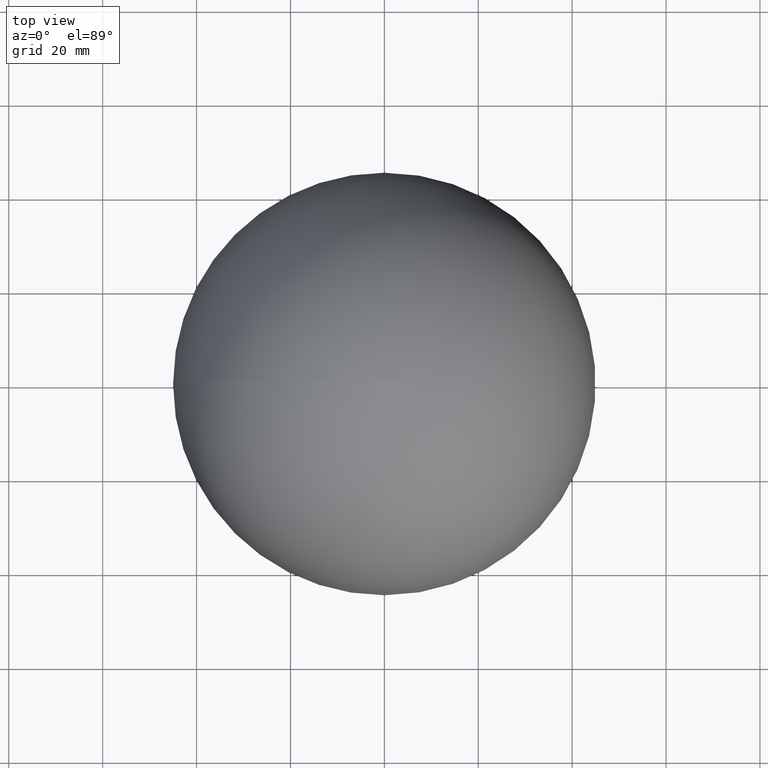
[diagram: clean part render]
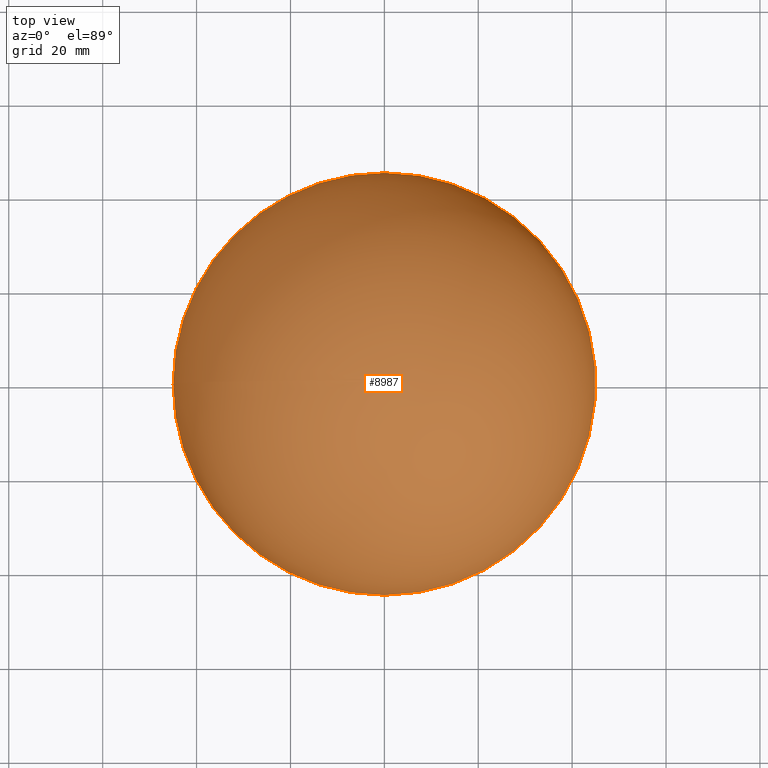
[diagram: same view with one face highlighted and labeled with its STEP entity id]
A machine part, top view. The second image highlights one B-rep face of the part: STEP entity #8987.
In plain terms, the highlighted spherical surface has radius 45 mm.
Its self-contained STEP definition (entity closure, byte-faithful):
#644 = DIRECTION ( 'NONE',  ( -1.000000000000000000, 0.0000000000000000000, 0.0000000000000000000 ) ) ;
#655 = ORIENTED_EDGE ( 'NONE', *, *, #2501, .T. ) ;
#1078 = DIRECTION ( 'NONE',  ( -1.224646799147353200E-016, 1.499759782661928200E-032, 1.000000000000000000 ) ) ;
#1117 = AXIS2_PLACEMENT_3D ( 'NONE', #3375, #1078, #1909 ) ;
#1210 = VERTEX_POINT ( 'NONE', #6724 ) ;
#1566 = CARTESIAN_POINT ( 'NONE',  ( 2.755455298081803900E-015, 45.00000000000000000, 0.0000000000000000000 ) ) ;
#1909 = DIRECTION ( 'NONE',  ( 1.000000000000000000, 0.0000000000000000000, 1.224646799147353200E-016 ) ) ;
#2078 = EDGE_CURVE ( 'NONE', #1210, #8767, #3544, .T. ) ;
#2116 = DIRECTION ( 'NONE',  ( -0.0000000000000000000, 0.0000000000000000000, -1.000000000000000000 ) ) ;
#2501 = EDGE_CURVE ( 'NONE', #1210, #8767, #9428, .T. ) ;
#2673 = DIRECTION ( 'NONE',  ( 0.0000000000000000000, 0.0000000000000000000, 1.000000000000000000 ) ) ;
#3366 = SPHERICAL_SURFACE ( 'NONE', #5497, 45.00000000000000000 ) ;
#3375 = CARTESIAN_POINT ( 'NONE',  ( 0.0000000000000000000, 0.0000000000000000000, 0.0000000000000000000 ) ) ;
#3397 = ORIENTED_EDGE ( 'NONE', *, *, #2078, .F. ) ;
#3544 = CIRCLE ( 'NONE', #9212, 45.00000000000000000 ) ;
#3833 = FACE_OUTER_BOUND ( 'NONE', #8458, .T. ) ;
#5497 = AXIS2_PLACEMENT_3D ( 'NONE', #7829, #2673, #8507 ) ;
#6724 = CARTESIAN_POINT ( 'NONE',  ( -8.266365894244893900E-015, -45.00000000000000000, 0.0000000000000000000 ) ) ;
#7829 = CARTESIAN_POINT ( 'NONE',  ( 0.0000000000000000000, 0.0000000000000000000, 0.0000000000000000000 ) ) ;
#8033 = CARTESIAN_POINT ( 'NONE',  ( 0.0000000000000000000, 0.0000000000000000000, 0.0000000000000000000 ) ) ;
#8458 = EDGE_LOOP ( 'NONE', ( #3397, #655 ) ) ;
#8507 = DIRECTION ( 'NONE',  ( -1.000000000000000000, 1.224646799147410900E-016, 0.0000000000000000000 ) ) ;
#8767 = VERTEX_POINT ( 'NONE', #1566 ) ;
#8987 = ADVANCED_FACE ( 'NONE', ( #3833 ), #3366, .T. ) ;
#9212 = AXIS2_PLACEMENT_3D ( 'NONE', #8033, #2116, #644 ) ;
#9428 = CIRCLE ( 'NONE', #1117, 45.00000000000000000 ) ;